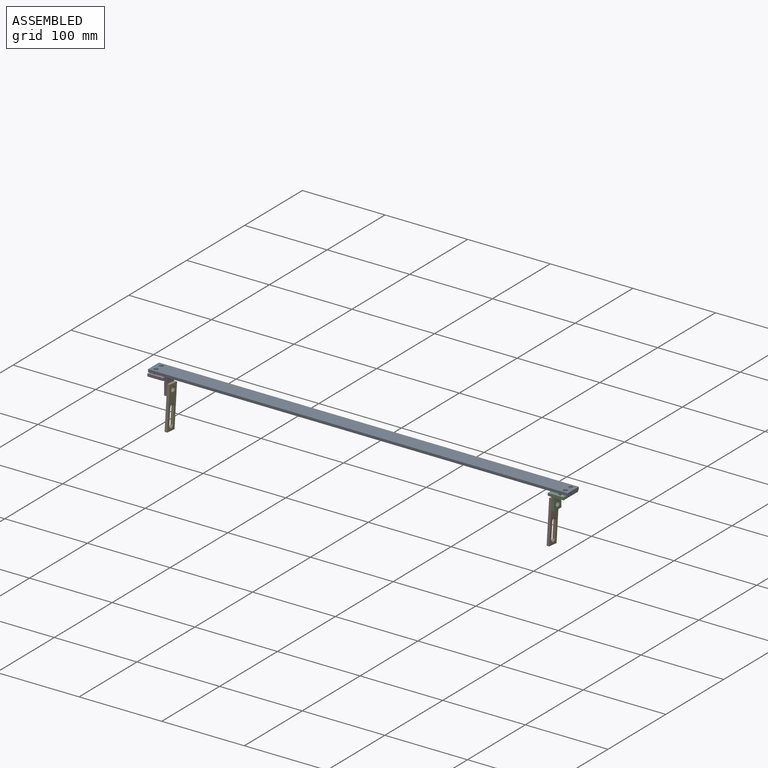
[diagram: assembled view]
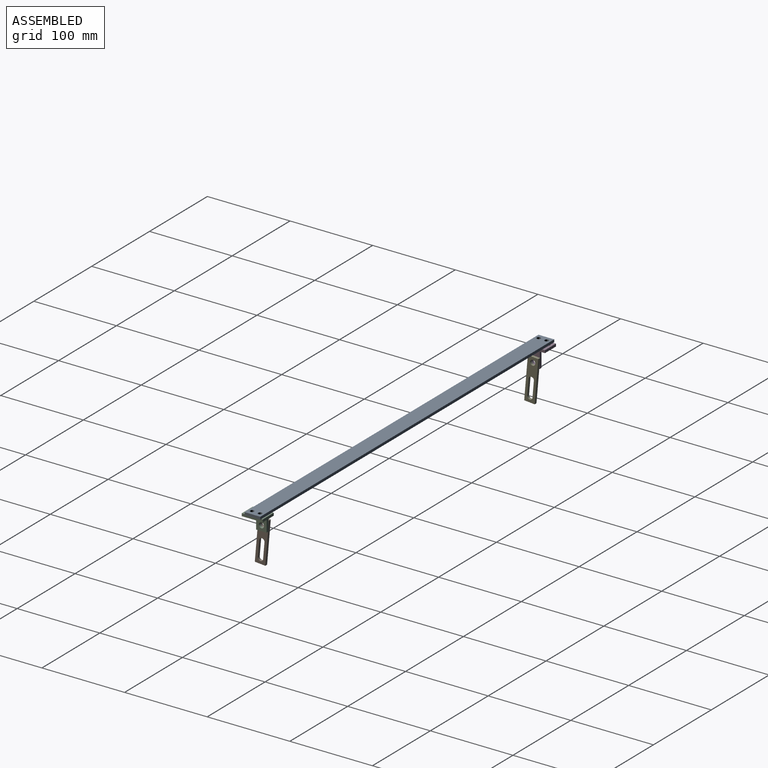
[diagram: assembled view, second angle]
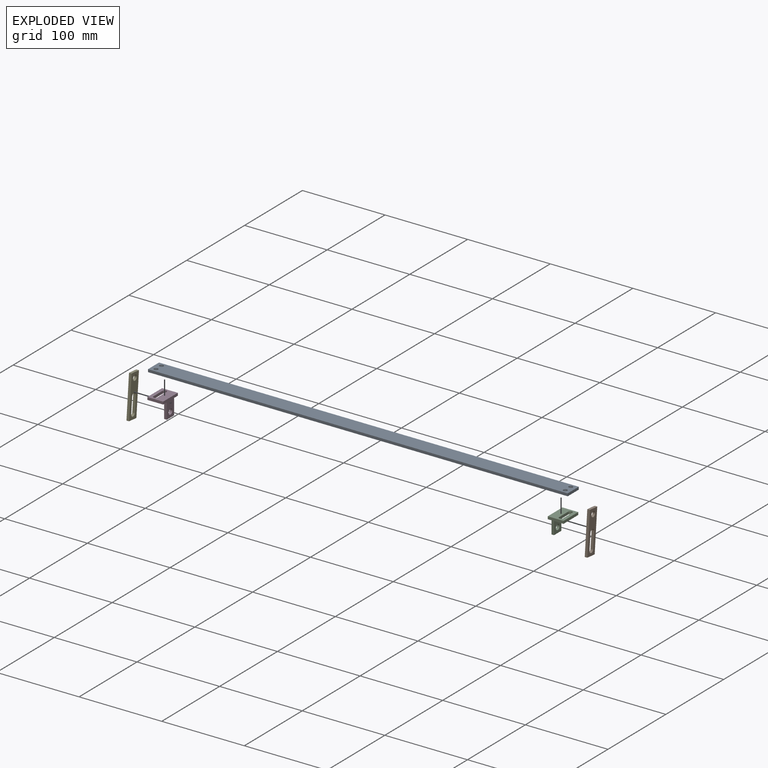
[diagram: exploded view]
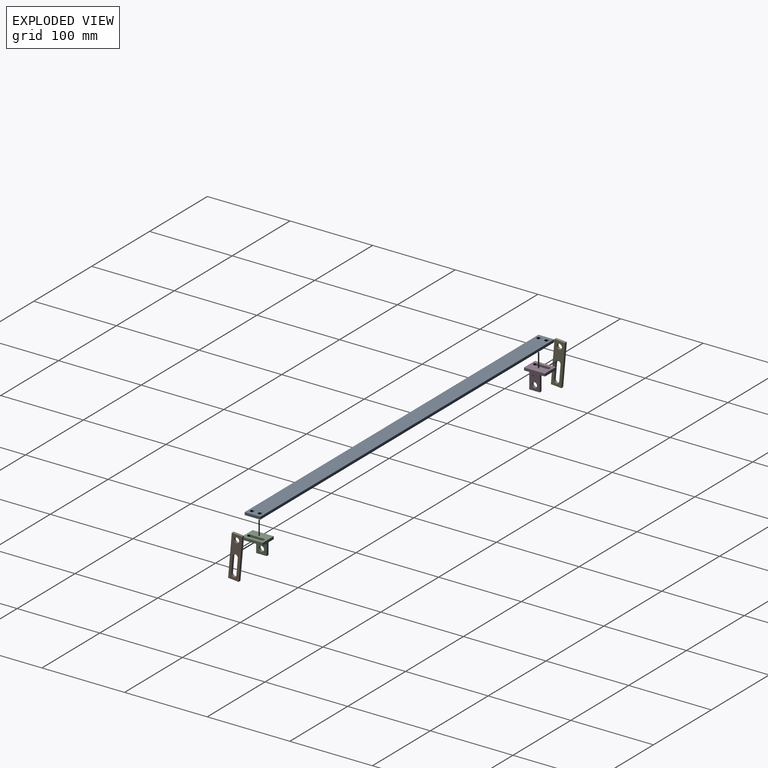
[diagram: exploded view, second angle]
ASSEMBLY  parts=5 mates=4
PART A: 10 faces, bbox 508x19.1x3.2 mm
  f0: plane 19.05x3.18mm, normal (-1,0,0), area 60.5mm2, adj f1,f6,f8,f9
  f1: plane 508x3.18mm, normal (0,-1,0), area 1612.9mm2, adj f0,f2,f8,f9
  f2: plane 19.05x3.18mm, normal (1,0,0), area 60.5mm2, adj f1,f6,f8,f9
  f3: cylinder r=2.38mm len=4.76mm, axis (0,0,-1), area 47.5mm2, adj f8,f9
  f4: cylinder r=2.38mm len=4.76mm, axis (0,0,-1), area 47.5mm2, adj f8,f9
  f5: cylinder r=2.38mm len=4.76mm, axis (0,0,-1), area 47.5mm2, adj f8,f9
  f6: plane 508x3.18mm, normal (0,1,0), area 1612.9mm2, adj f0,f2,f8,f9
  f7: cylinder r=2.38mm len=4.76mm, axis (0,0,-1), area 47.5mm2, adj f8,f9
  f8: plane 508x19.05mm, normal (0,0,1), area 9606.1mm2, adj f0,f1,f2,f3,f4,f5,f6,f7
  f9: plane 508x19.05mm, normal (0,0,-1), area 9606.1mm2, adj f0,f1,f2,f3,f4,f5,f6,f7
PART B: 11 faces, bbox 12.7x50.8x3.2 mm
  f0: plane 19.05x3.18mm, normal (1,0,0), area 60.5mm2, adj f1,f6,f9,f10
  f1: cylinder r=3.17mm len=6.35mm, axis (0,0,-1), area 31.7mm2, adj f0,f2,f9,f10
  f2: plane 19.05x3.18mm, normal (-1,0,0), area 60.5mm2, adj f1,f6,f9,f10
  f3: plane 50.8x3.18mm, normal (-1,0,0), area 161.3mm2, adj f4,f7,f9,f10
  f4: plane 12.7x3.18mm, normal (0,-1,0), area 40.3mm2, adj f3,f5,f9,f10
  f5: plane 50.8x3.18mm, normal (1,0,0), area 161.3mm2, adj f4,f7,f9,f10
  f6: cylinder r=3.17mm len=6.35mm, axis (0,0,-1), area 31.7mm2, adj f0,f2,f9,f10
  f7: plane 12.7x3.18mm, normal (0,1,0), area 40.3mm2, adj f3,f5,f9,f10
  f8: cylinder r=3.17mm len=6.35mm, axis (0,0,-1), area 63.3mm2, adj f9,f10
  f9: plane 50.8x12.7mm, normal (0,0,1), area 460.9mm2, adj f0,f1,f2,f3,f4,f5,f6,f7
  f10: plane 50.8x12.7mm, normal (0,0,-1), area 460.9mm2, adj f0,f1,f2,f3,f4,f5,f6,f7
PART C: 15 faces, bbox 25.4x22.2x19.1 mm
  f0: plane 19.05x3.18mm, normal (-1,0,0), area 60.5mm2, adj f1,f4,f5,f14
  f1: plane 12.7x3.18mm, normal (0,-1,0), area 40.3mm2, adj f0,f2,f4,f5
  f2: plane 19.05x3.18mm, normal (1,0,0), area 60.5mm2, adj f1,f4,f5,f14
  f3: cylinder r=3.17mm len=6.35mm, axis (0,0,-1), area 63.3mm2, adj f4,f5
  f4: plane 19.05x12.7mm, normal (0,0,1), area 210.3mm2, adj f0,f1,f2,f3,f14
  f5: plane 25.4x22.23mm, normal (0,0,-1), area 290.9mm2, adj f0,f1,f2,f3,f9,f10,f13,f14
  f6: cylinder r=2.38mm len=4.76mm, axis (0,-1,0), area 23.8mm2, adj f7,f12,f13,f14
  f7: plane 15.88x3.18mm, normal (0,0,-1), area 50.4mm2, adj f6,f8,f13,f14
  f8: cylinder r=2.38mm len=4.76mm, axis (0,-1,0), area 23.8mm2, adj f7,f12,f13,f14
  f9: plane 19.05x3.18mm, normal (1,0,0), area 60.5mm2, adj f5,f11,f13,f14
  f10: plane 19.05x3.18mm, normal (-1,0,0), area 60.5mm2, adj f5,f11,f13,f14
  f11: plane 25.4x3.18mm, normal (0,0,1), area 80.6mm2, adj f9,f10,f13,f14
  f12: plane 15.88x3.18mm, normal (0,0,1), area 50.4mm2, adj f6,f8,f13,f14
  f13: plane 25.4x19.05mm, normal (0,1,0), area 390.5mm2, adj f5,f6,f7,f8,f9,f10,f11,f12
  f14: plane 25.4x19.05mm, normal (0,-1,0), area 350.1mm2, adj f0,f2,f4,f5,f6,f7,f8,f9
PART D: same geometry as C
PART E: same geometry as B
PLACE A t=(-196.85,43.02,42.09)mm
PLACE B rot(axis=(0.56,0.61,0.56),117.2deg) t=(287.15,40.83,-17.51)mm
PLACE C rot(axis=(0.58,0.58,0.58),120deg) t=(290.32,44.68,19.86)mm
PLACE D rot(axis=(0.58,-0.58,-0.58),120deg) t=(-176.28,58.9,19.86)mm
PLACE E rot(axis=(0.56,-0.61,-0.56),117.2deg) t=(-173.1,55,-18.62)mm
MATE cylindrical D.f3 <-> E.f8  axis (1,0,0) through (-176.28,52.55,26.21)mm
MATE planar D.f13 <-> A.f9  axis (0,0,1) through (-195.33,52.55,42.09)mm
MATE cylindrical C.f3 <-> B.f8  axis (-1,0,0) through (290.32,51.03,26.21)mm
MATE planar A.f9 <-> C.f13  axis (0,0,-1) through (311.15,52.55,42.09)mm
